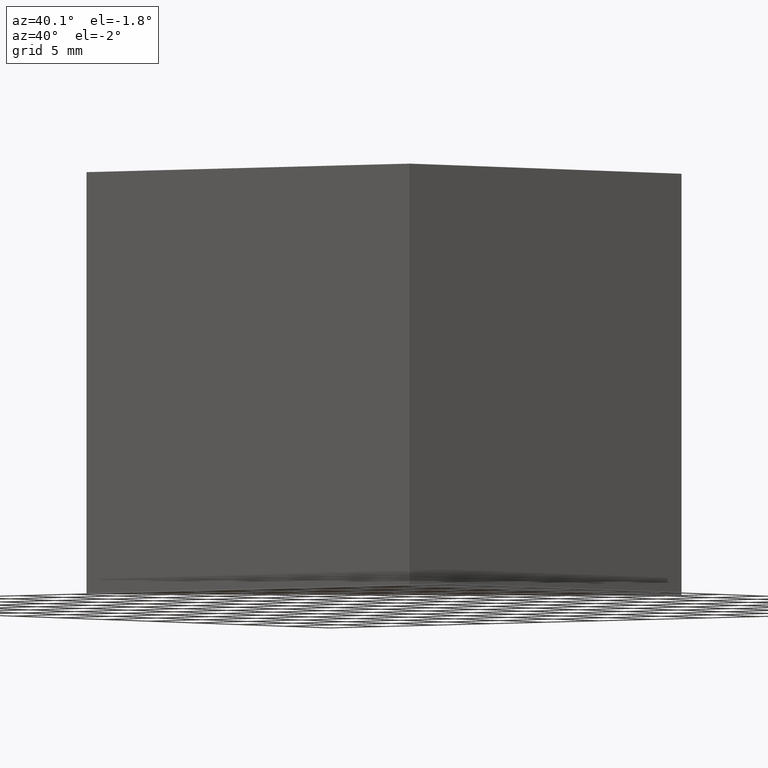
[diagram: clean part render]
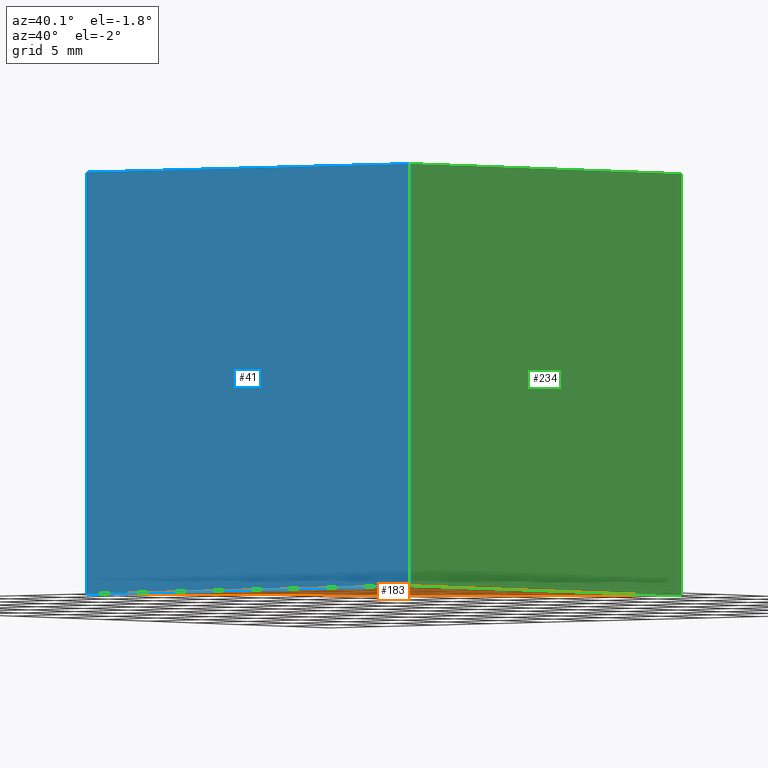
[diagram: same view with three faces highlighted in distinct colors, each labeled with its STEP entity id]
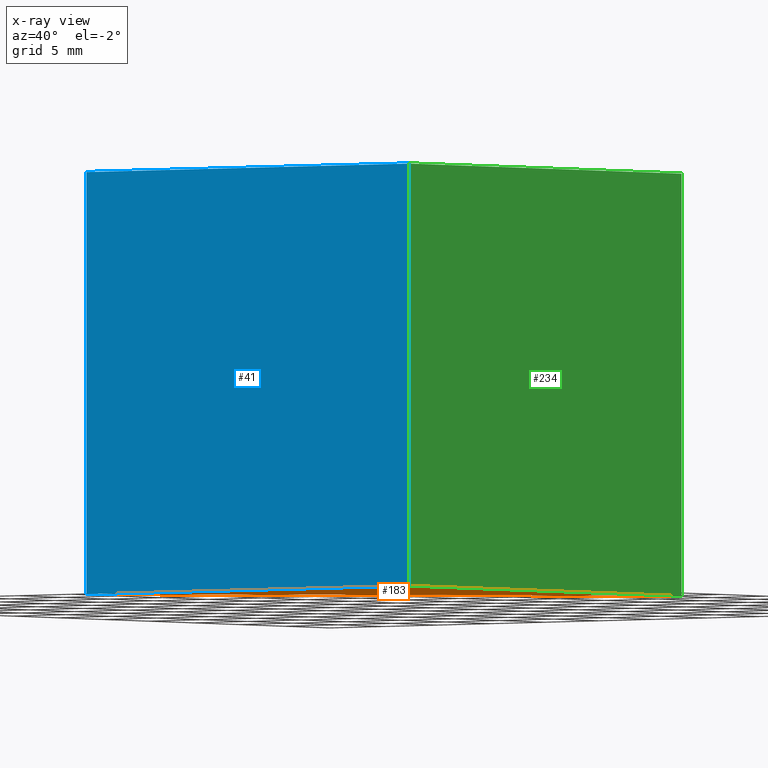
[diagram: x-ray of the same camera — body ghosted, the three highlighted faces saturated]
A machine part, auxiliary view with three faces highlighted in distinct colors.
The next image is the same camera in x-ray (body ghosted, the three faces saturated) — at least one of them is partly hidden behind the body in this view.
Their STEP definitions:

[orange] entity #183 — the highlighted planar face has unit normal (0, 0, -1).
#9 = CARTESIAN_POINT ( 'NONE',  ( 104.8284382265434300, 79.66744214418361000, 0.0000000000000000000 ) ) ;
#12 = CARTESIAN_POINT ( 'NONE',  ( 74.82843822654344000, 79.66744214418361000, 0.0000000000000000000 ) ) ;
#13 = VERTEX_POINT ( 'NONE', #140 ) ;
#50 = VECTOR ( 'NONE', #161, 1000.000000000000100 ) ;
#51 = LINE ( 'NONE', #9, #195 ) ;
#58 = PLANE ( 'NONE',  #177 ) ;
#76 = VECTOR ( 'NONE', #159, 1000.000000000000000 ) ;
#78 = EDGE_CURVE ( 'NONE', #236, #13, #260, .T. ) ;
#79 = CARTESIAN_POINT ( 'NONE',  ( 0.0000000000000000000, 0.0000000000000000000, 0.0000000000000000000 ) ) ;
#95 = ORIENTED_EDGE ( 'NONE', *, *, #96, .F. ) ;
#96 = EDGE_CURVE ( 'NONE', #13, #262, #51, .T. ) ;
#107 = CARTESIAN_POINT ( 'NONE',  ( 104.8284382265434300, 109.6674421441836100, 0.0000000000000000000 ) ) ;
#109 = ORIENTED_EDGE ( 'NONE', *, *, #78, .F. ) ;
#118 = CARTESIAN_POINT ( 'NONE',  ( 104.8284382265434300, 79.66744214418361000, 0.0000000000000000000 ) ) ;
#121 = DIRECTION ( 'NONE',  ( 0.0000000000000000000, 1.000000000000000000, 0.0000000000000000000 ) ) ;
#140 = CARTESIAN_POINT ( 'NONE',  ( 104.8284382265434300, 79.66744214418361000, 0.0000000000000000000 ) ) ;
#154 = EDGE_LOOP ( 'NONE', ( #109, #156, #95 ) ) ;
#156 = ORIENTED_EDGE ( 'NONE', *, *, #187, .F. ) ;
#159 = DIRECTION ( 'NONE',  ( 1.000000000000000000, -0.0000000000000000000, -0.0000000000000000000 ) ) ;
#161 = DIRECTION ( 'NONE',  ( -0.7071067811865474600, -0.7071067811865474600, -0.0000000000000000000 ) ) ;
#177 = AXIS2_PLACEMENT_3D ( 'NONE', #79, #223, #227 ) ;
#183 = ADVANCED_FACE ( 'NONE', ( #279 ), #58, .T. ) ;
#187 = EDGE_CURVE ( 'NONE', #262, #236, #238, .T. ) ;
#195 = VECTOR ( 'NONE', #121, 1000.000000000000000 ) ;
#223 = DIRECTION ( 'NONE',  ( 0.0000000000000000000, 0.0000000000000000000, -1.000000000000000000 ) ) ;
#227 = DIRECTION ( 'NONE',  ( -1.000000000000000000, 0.0000000000000000000, -0.0000000000000000000 ) ) ;
#236 = VERTEX_POINT ( 'NONE', #12 ) ;
#238 = LINE ( 'NONE', #246, #50 ) ;
#246 = CARTESIAN_POINT ( 'NONE',  ( 74.82843822654344000, 79.66744214418361000, 0.0000000000000000000 ) ) ;
#260 = LINE ( 'NONE', #118, #76 ) ;
#262 = VERTEX_POINT ( 'NONE', #107 ) ;
#279 = FACE_OUTER_BOUND ( 'NONE', #154, .T. ) ;

[blue] entity #41 — the highlighted planar face has unit normal (0, 1, -0).
#12 = CARTESIAN_POINT ( 'NONE',  ( 74.82843822654344000, 79.66744214418361000, 0.0000000000000000000 ) ) ;
#13 = VERTEX_POINT ( 'NONE', #140 ) ;
#21 = VECTOR ( 'NONE', #273, 1000.000000000000000 ) ;
#31 = VERTEX_POINT ( 'NONE', #160 ) ;
#33 = CARTESIAN_POINT ( 'NONE',  ( 104.8284382265434300, 79.66744214418361000, 30.00000000000000000 ) ) ;
#35 = CARTESIAN_POINT ( 'NONE',  ( 104.8284382265434300, 79.66744214418361000, 30.00000000000000000 ) ) ;
#41 = ADVANCED_FACE ( 'NONE', ( #90 ), #202, .F. ) ;
#44 = ORIENTED_EDGE ( 'NONE', *, *, #282, .T. ) ;
#54 = LINE ( 'NONE', #81, #21 ) ;
#55 = DIRECTION ( 'NONE',  ( 1.000000000000000000, -0.0000000000000000000, -0.0000000000000000000 ) ) ;
#59 = VERTEX_POINT ( 'NONE', #245 ) ;
#74 = EDGE_CURVE ( 'NONE', #31, #13, #220, .T. ) ;
#76 = VECTOR ( 'NONE', #159, 1000.000000000000000 ) ;
#78 = EDGE_CURVE ( 'NONE', #236, #13, #260, .T. ) ;
#81 = CARTESIAN_POINT ( 'NONE',  ( 74.82843822654344000, 79.66744214418361000, 30.00000000000000000 ) ) ;
#85 = ORIENTED_EDGE ( 'NONE', *, *, #78, .T. ) ;
#90 = FACE_OUTER_BOUND ( 'NONE', #214, .T. ) ;
#98 = ORIENTED_EDGE ( 'NONE', *, *, #74, .F. ) ;
#100 = CARTESIAN_POINT ( 'NONE',  ( 104.8284382265434300, 79.66744214418361000, 30.00000000000000000 ) ) ;
#102 = ORIENTED_EDGE ( 'NONE', *, *, #128, .F. ) ;
#112 = VECTOR ( 'NONE', #179, 1000.000000000000000 ) ;
#118 = CARTESIAN_POINT ( 'NONE',  ( 104.8284382265434300, 79.66744214418361000, 0.0000000000000000000 ) ) ;
#128 = EDGE_CURVE ( 'NONE', #59, #31, #134, .T. ) ;
#134 = LINE ( 'NONE', #33, #272 ) ;
#137 = DIRECTION ( 'NONE',  ( 0.0000000000000000000, 1.000000000000000000, -0.0000000000000000000 ) ) ;
#139 = DIRECTION ( 'NONE',  ( 0.0000000000000000000, 0.0000000000000000000, 1.000000000000000000 ) ) ;
#140 = CARTESIAN_POINT ( 'NONE',  ( 104.8284382265434300, 79.66744214418361000, 0.0000000000000000000 ) ) ;
#159 = DIRECTION ( 'NONE',  ( 1.000000000000000000, -0.0000000000000000000, -0.0000000000000000000 ) ) ;
#160 = CARTESIAN_POINT ( 'NONE',  ( 104.8284382265434300, 79.66744214418361000, 30.00000000000000000 ) ) ;
#179 = DIRECTION ( 'NONE',  ( -0.0000000000000000000, -0.0000000000000000000, -1.000000000000000000 ) ) ;
#202 = PLANE ( 'NONE',  #230 ) ;
#214 = EDGE_LOOP ( 'NONE', ( #85, #98, #102, #44 ) ) ;
#220 = LINE ( 'NONE', #35, #112 ) ;
#230 = AXIS2_PLACEMENT_3D ( 'NONE', #100, #137, #139 ) ;
#236 = VERTEX_POINT ( 'NONE', #12 ) ;
#245 = CARTESIAN_POINT ( 'NONE',  ( 74.82843822654344000, 79.66744214418361000, 30.00000000000000000 ) ) ;
#260 = LINE ( 'NONE', #118, #76 ) ;
#272 = VECTOR ( 'NONE', #55, 1000.000000000000000 ) ;
#273 = DIRECTION ( 'NONE',  ( -0.0000000000000000000, -0.0000000000000000000, -1.000000000000000000 ) ) ;
#282 = EDGE_CURVE ( 'NONE', #59, #236, #54, .T. ) ;

[green] entity #234 — the highlighted planar face has unit normal (-1, 0, 0).
#9 = CARTESIAN_POINT ( 'NONE',  ( 104.8284382265434300, 79.66744214418361000, 0.0000000000000000000 ) ) ;
#13 = VERTEX_POINT ( 'NONE', #140 ) ;
#25 = EDGE_LOOP ( 'NONE', ( #205, #136, #37, #175 ) ) ;
#31 = VERTEX_POINT ( 'NONE', #160 ) ;
#32 = DIRECTION ( 'NONE',  ( -1.000000000000000000, 0.0000000000000000000, 0.0000000000000000000 ) ) ;
#35 = CARTESIAN_POINT ( 'NONE',  ( 104.8284382265434300, 79.66744214418361000, 30.00000000000000000 ) ) ;
#37 = ORIENTED_EDGE ( 'NONE', *, *, #69, .F. ) ;
#51 = LINE ( 'NONE', #9, #195 ) ;
#67 = VECTOR ( 'NONE', #180, 1000.000000000000000 ) ;
#69 = EDGE_CURVE ( 'NONE', #31, #257, #226, .T. ) ;
#73 = DIRECTION ( 'NONE',  ( -0.0000000000000000000, -0.0000000000000000000, -1.000000000000000000 ) ) ;
#74 = EDGE_CURVE ( 'NONE', #31, #13, #220, .T. ) ;
#96 = EDGE_CURVE ( 'NONE', #13, #262, #51, .T. ) ;
#97 = PLANE ( 'NONE',  #196 ) ;
#107 = CARTESIAN_POINT ( 'NONE',  ( 104.8284382265434300, 109.6674421441836100, 0.0000000000000000000 ) ) ;
#112 = VECTOR ( 'NONE', #179, 1000.000000000000000 ) ;
#119 = DIRECTION ( 'NONE',  ( 0.0000000000000000000, 0.0000000000000000000, 1.000000000000000000 ) ) ;
#121 = DIRECTION ( 'NONE',  ( 0.0000000000000000000, 1.000000000000000000, 0.0000000000000000000 ) ) ;
#136 = ORIENTED_EDGE ( 'NONE', *, *, #172, .F. ) ;
#140 = CARTESIAN_POINT ( 'NONE',  ( 104.8284382265434300, 79.66744214418361000, 0.0000000000000000000 ) ) ;
#143 = FACE_OUTER_BOUND ( 'NONE', #25, .T. ) ;
#160 = CARTESIAN_POINT ( 'NONE',  ( 104.8284382265434300, 79.66744214418361000, 30.00000000000000000 ) ) ;
#172 = EDGE_CURVE ( 'NONE', #257, #262, #250, .T. ) ;
#175 = ORIENTED_EDGE ( 'NONE', *, *, #74, .T. ) ;
#179 = DIRECTION ( 'NONE',  ( -0.0000000000000000000, -0.0000000000000000000, -1.000000000000000000 ) ) ;
#180 = DIRECTION ( 'NONE',  ( 0.0000000000000000000, 1.000000000000000000, 0.0000000000000000000 ) ) ;
#195 = VECTOR ( 'NONE', #121, 1000.000000000000000 ) ;
#196 = AXIS2_PLACEMENT_3D ( 'NONE', #242, #32, #119 ) ;
#199 = CARTESIAN_POINT ( 'NONE',  ( 104.8284382265434300, 109.6674421441836100, 30.00000000000000000 ) ) ;
#203 = CARTESIAN_POINT ( 'NONE',  ( 104.8284382265434300, 109.6674421441836100, 30.00000000000000000 ) ) ;
#205 = ORIENTED_EDGE ( 'NONE', *, *, #96, .T. ) ;
#220 = LINE ( 'NONE', #35, #112 ) ;
#226 = LINE ( 'NONE', #270, #67 ) ;
#234 = ADVANCED_FACE ( 'NONE', ( #143 ), #97, .F. ) ;
#242 = CARTESIAN_POINT ( 'NONE',  ( 104.8284382265434300, 79.66744214418361000, 30.00000000000000000 ) ) ;
#244 = VECTOR ( 'NONE', #73, 1000.000000000000000 ) ;
#250 = LINE ( 'NONE', #203, #244 ) ;
#257 = VERTEX_POINT ( 'NONE', #199 ) ;
#262 = VERTEX_POINT ( 'NONE', #107 ) ;
#270 = CARTESIAN_POINT ( 'NONE',  ( 104.8284382265434300, 79.66744214418361000, 30.00000000000000000 ) ) ;